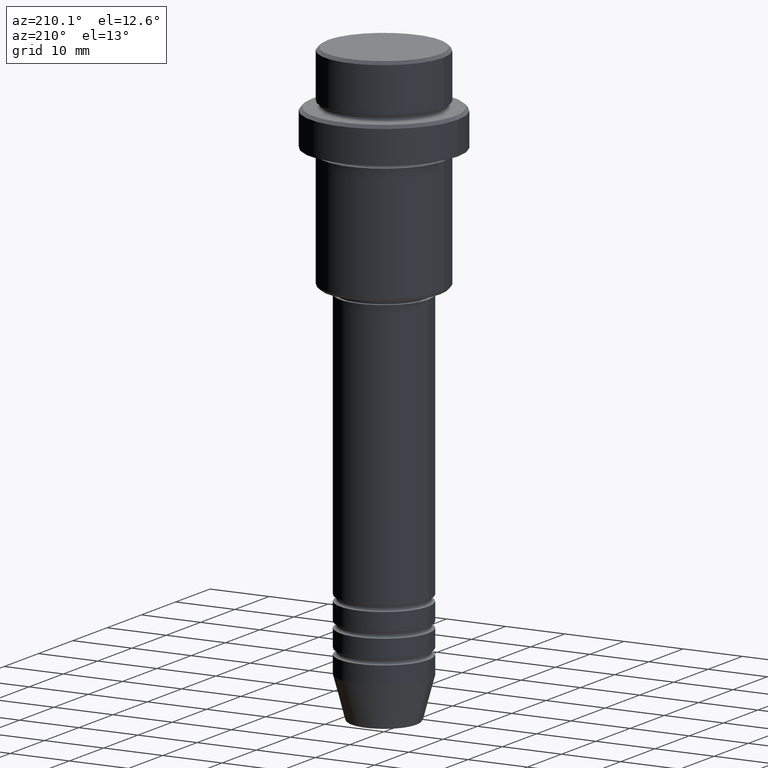
[diagram: clean part render]
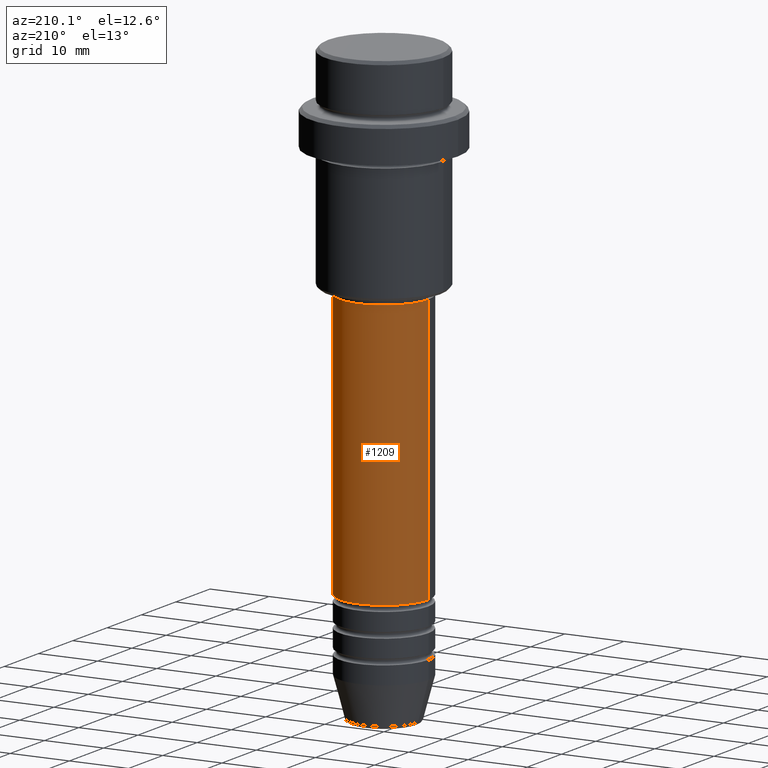
[diagram: same view with one face highlighted and labeled with its STEP entity id]
A machine part, auxiliary view. The second image highlights one B-rep face of the part: STEP entity #1209.
In plain terms, the highlighted cylindrical surface (partial cylindrical patch) has radius 7.5 mm, axis along (-0, -0, 1).
Its self-contained STEP definition (entity closure, byte-faithful):
#6 = CARTESIAN_POINT ( 'NONE',  ( -7.500000000000000000, 9.184850993605147944E-16, -81.99999999999987210 ) ) ;
#31 = CARTESIAN_POINT ( 'NONE',  ( -7.500000000000000000, 9.184850993605147944E-16, 0.000000000000000000 ) ) ;
#52 = VERTEX_POINT ( 'NONE', #350 ) ;
#131 = DIRECTION ( 'NONE',  ( 1.000000000000000000, 0.000000000000000000, 0.000000000000000000 ) ) ;
#251 = DIRECTION ( 'NONE',  ( -0.000000000000000000, -0.000000000000000000, 1.000000000000000000 ) ) ;
#326 = EDGE_CURVE ( 'NONE', #871, #52, #1103, .T. ) ;
#350 = CARTESIAN_POINT ( 'NONE',  ( -7.500000000000000000, 9.184850993605147944E-16, -36.99999999999998579 ) ) ;
#364 = LINE ( 'NONE', #31, #1236 ) ;
#479 = ORIENTED_EDGE ( 'NONE', *, *, #1406, .T. ) ;
#492 = LINE ( 'NONE', #932, #924 ) ;
#528 = CARTESIAN_POINT ( 'NONE',  ( 0.000000000000000000, 0.000000000000000000, 0.000000000000000000 ) ) ;
#531 = DIRECTION ( 'NONE',  ( 1.000000000000000000, 0.000000000000000000, 0.000000000000000000 ) ) ;
#619 = AXIS2_PLACEMENT_3D ( 'NONE', #1383, #1195, #531 ) ;
#635 = CYLINDRICAL_SURFACE ( 'NONE', #1259, 7.500000000000000000 ) ;
#654 = ORIENTED_EDGE ( 'NONE', *, *, #1078, .F. ) ;
#690 = DIRECTION ( 'NONE',  ( -0.000000000000000000, -0.000000000000000000, 1.000000000000000000 ) ) ;
#713 = CIRCLE ( 'NONE', #1148, 7.500000000000000000 ) ;
#716 = ORIENTED_EDGE ( 'NONE', *, *, #1045, .T. ) ;
#743 = FACE_OUTER_BOUND ( 'NONE', #1100, .T. ) ;
#871 = VERTEX_POINT ( 'NONE', #970 ) ;
#924 = VECTOR ( 'NONE', #1355, 1000.000000000000000 ) ;
#932 = CARTESIAN_POINT ( 'NONE',  ( 7.500000000000000000, 0.000000000000000000, 0.000000000000000000 ) ) ;
#970 = CARTESIAN_POINT ( 'NONE',  ( 7.500000000000000000, 0.000000000000000000, -36.99999999999998579 ) ) ;
#973 = DIRECTION ( 'NONE',  ( -0.000000000000000000, -0.000000000000000000, 1.000000000000000000 ) ) ;
#995 = VERTEX_POINT ( 'NONE', #1027 ) ;
#1027 = CARTESIAN_POINT ( 'NONE',  ( 7.500000000000000000, 0.000000000000000000, -81.99999999999987210 ) ) ;
#1034 = ORIENTED_EDGE ( 'NONE', *, *, #326, .F. ) ;
#1045 = EDGE_CURVE ( 'NONE', #995, #1363, #713, .T. ) ;
#1078 = EDGE_CURVE ( 'NONE', #995, #871, #492, .T. ) ;
#1100 = EDGE_LOOP ( 'NONE', ( #716, #479, #1034, #654 ) ) ;
#1103 = CIRCLE ( 'NONE', #619, 7.500000000000000000 ) ;
#1121 = CARTESIAN_POINT ( 'NONE',  ( 0.000000000000000000, 0.000000000000000000, -81.99999999999987210 ) ) ;
#1148 = AXIS2_PLACEMENT_3D ( 'NONE', #1121, #690, #131 ) ;
#1195 = DIRECTION ( 'NONE',  ( -0.000000000000000000, -0.000000000000000000, 1.000000000000000000 ) ) ;
#1209 = ADVANCED_FACE ( 'NONE', ( #743 ), #635, .T. ) ;
#1236 = VECTOR ( 'NONE', #251, 1000.000000000000000 ) ;
#1259 = AXIS2_PLACEMENT_3D ( 'NONE', #528, #973, #1401 ) ;
#1355 = DIRECTION ( 'NONE',  ( -0.000000000000000000, -0.000000000000000000, 1.000000000000000000 ) ) ;
#1363 = VERTEX_POINT ( 'NONE', #6 ) ;
#1383 = CARTESIAN_POINT ( 'NONE',  ( 0.000000000000000000, 0.000000000000000000, -36.99999999999998579 ) ) ;
#1401 = DIRECTION ( 'NONE',  ( 1.000000000000000000, 0.000000000000000000, 0.000000000000000000 ) ) ;
#1406 = EDGE_CURVE ( 'NONE', #1363, #52, #364, .T. ) ;